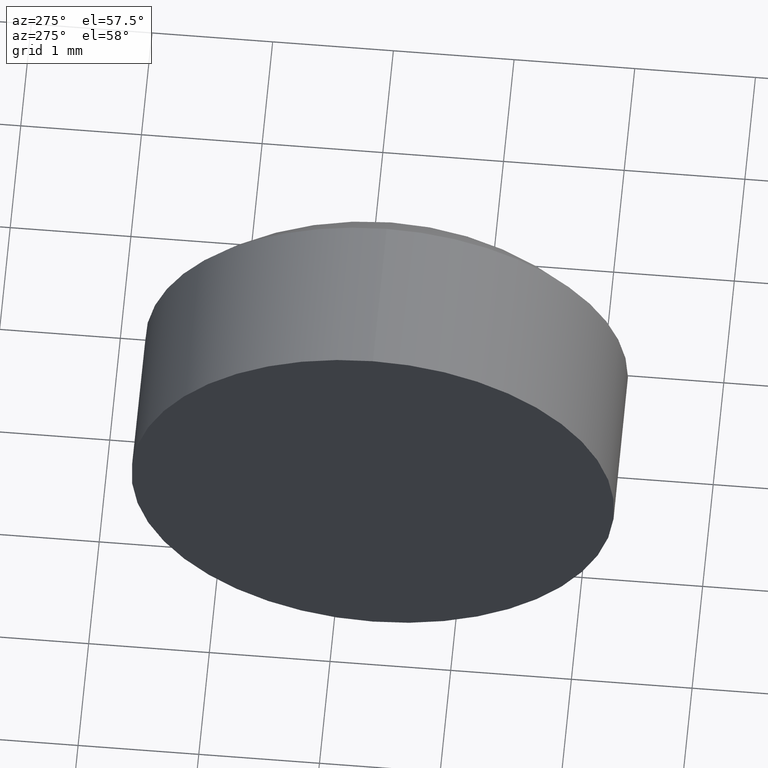
[diagram: clean part render]
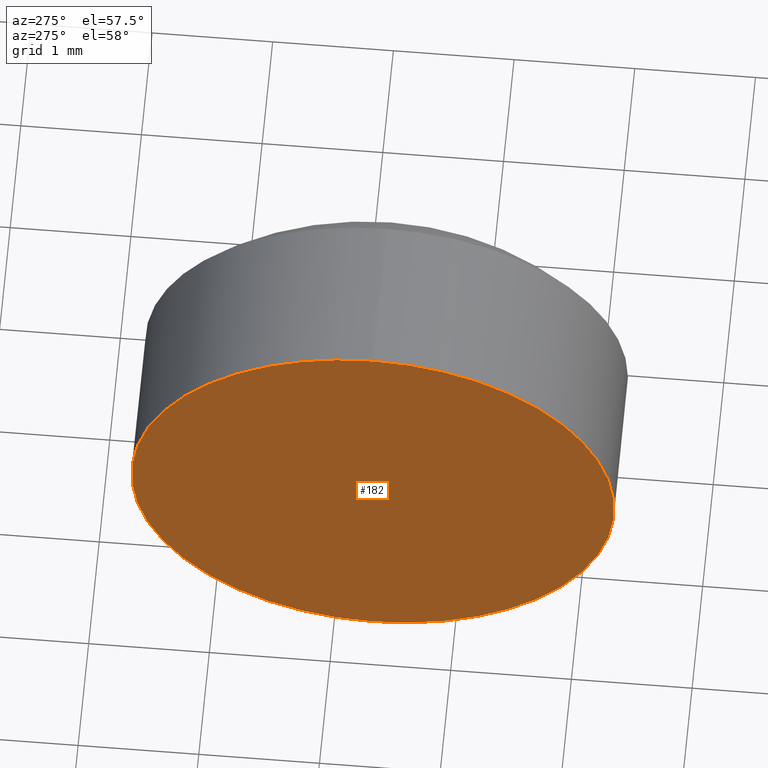
[diagram: same view with one face highlighted and labeled with its STEP entity id]
A machine part, auxiliary view. The second image highlights one B-rep face of the part: STEP entity #182.
In plain terms, the highlighted planar face has unit normal (1, 0, 0).
Its self-contained STEP definition (entity closure, byte-faithful):
#13 = EDGE_LOOP ( 'NONE', ( #172, #171 ) ) ;
#30 = CARTESIAN_POINT ( 'NONE',  ( 369.3620261446946000, 55.67682587969912300, 0.0000000000000000000 ) ) ;
#40 = VERTEX_POINT ( 'NONE', #102 ) ;
#61 = CARTESIAN_POINT ( 'NONE',  ( 369.3620261446946000, 55.67682587969912300, 0.0000000000000000000 ) ) ;
#64 = AXIS2_PLACEMENT_3D ( 'NONE', #151, #106, #72 ) ;
#65 = EDGE_CURVE ( 'NONE', #40, #127, #69, .T. ) ;
#69 = CIRCLE ( 'NONE', #145, 2.000000000000001800 ) ;
#72 = DIRECTION ( 'NONE',  ( 0.0000000000000000000, 0.0000000000000000000, 1.000000000000000000 ) ) ;
#82 = EDGE_CURVE ( 'NONE', #127, #40, #144, .T. ) ;
#89 = DIRECTION ( 'NONE',  ( -1.000000000000000000, -0.0000000000000000000, -0.0000000000000000000 ) ) ;
#96 = FACE_OUTER_BOUND ( 'NONE', #13, .T. ) ;
#98 = AXIS2_PLACEMENT_3D ( 'NONE', #61, #148, #123 ) ;
#102 = CARTESIAN_POINT ( 'NONE',  ( 369.3620261446946000, 55.67682587969912300, 2.000000000000001800 ) ) ;
#106 = DIRECTION ( 'NONE',  ( -1.000000000000000000, -0.0000000000000000000, -0.0000000000000000000 ) ) ;
#123 = DIRECTION ( 'NONE',  ( 0.0000000000000000000, 0.0000000000000000000, -1.000000000000000000 ) ) ;
#127 = VERTEX_POINT ( 'NONE', #146 ) ;
#144 = CIRCLE ( 'NONE', #64, 2.000000000000001800 ) ;
#145 = AXIS2_PLACEMENT_3D ( 'NONE', #30, #89, #174 ) ;
#146 = CARTESIAN_POINT ( 'NONE',  ( 369.3620261446946000, 55.67682587969912300, -2.000000000000001800 ) ) ;
#148 = DIRECTION ( 'NONE',  ( 1.000000000000000000, 0.0000000000000000000, 0.0000000000000000000 ) ) ;
#149 = PLANE ( 'NONE',  #98 ) ;
#151 = CARTESIAN_POINT ( 'NONE',  ( 369.3620261446946000, 55.67682587969912300, 0.0000000000000000000 ) ) ;
#171 = ORIENTED_EDGE ( 'NONE', *, *, #82, .T. ) ;
#172 = ORIENTED_EDGE ( 'NONE', *, *, #65, .T. ) ;
#174 = DIRECTION ( 'NONE',  ( 0.0000000000000000000, 0.0000000000000000000, 1.000000000000000000 ) ) ;
#182 = ADVANCED_FACE ( 'NONE', ( #96 ), #149, .F. ) ;